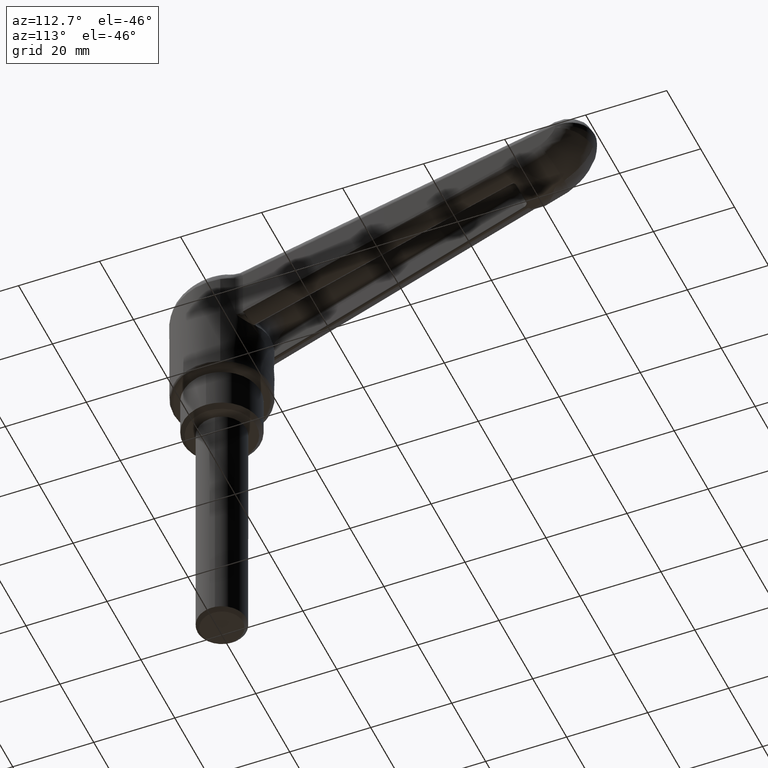
[diagram: clean part render]
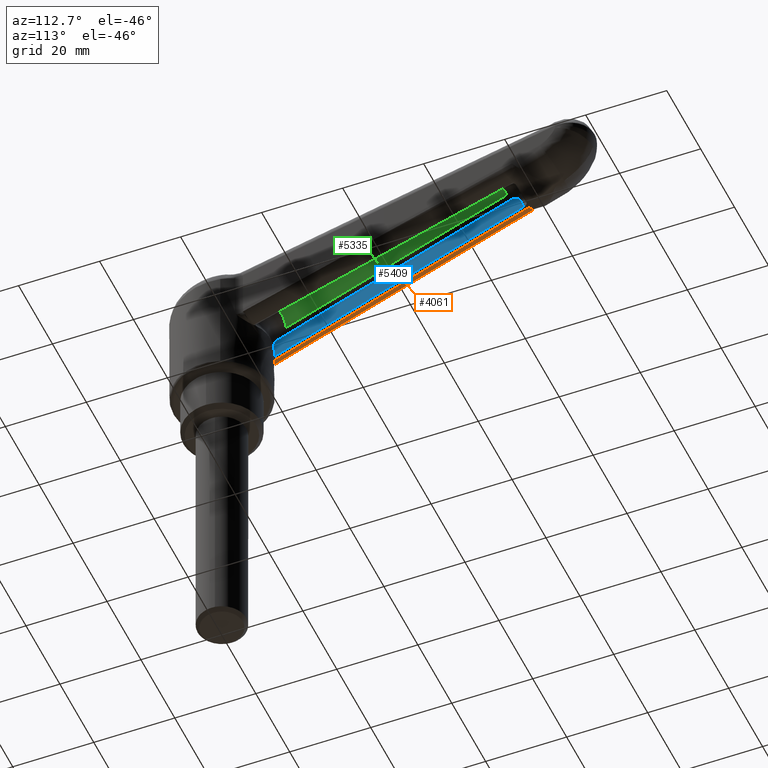
[diagram: same view with three faces highlighted in distinct colors, each labeled with its STEP entity id]
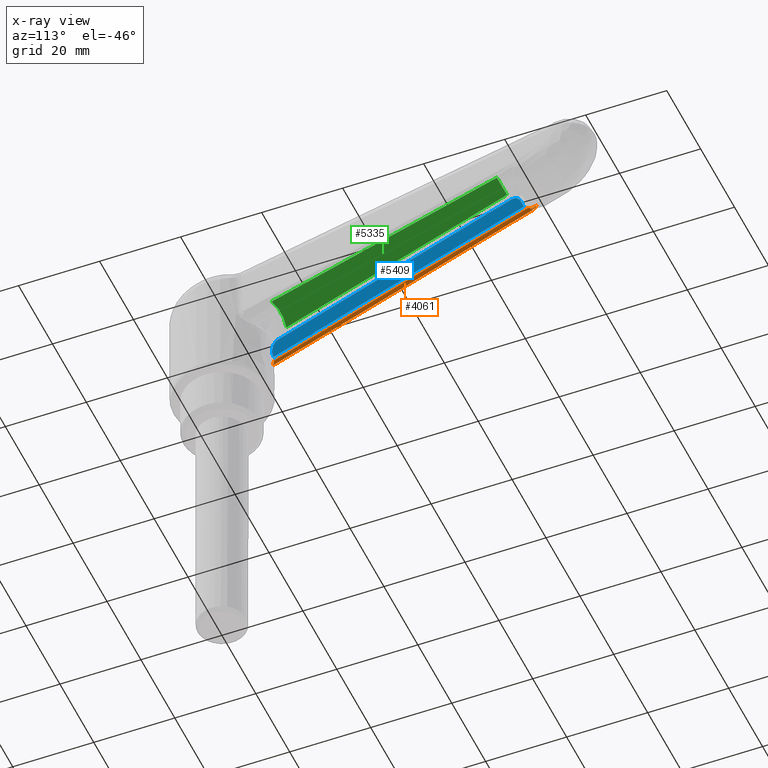
[diagram: x-ray of the same camera — body ghosted, the three highlighted faces saturated]
A machine part, auxiliary view with three faces highlighted in distinct colors.
The next image is the same camera in x-ray (body ghosted, the three faces saturated) — at least one of them is partly hidden behind the body in this view.
Their STEP definitions:

[orange] entity #4061 — the highlighted face is a freeform B-spline surface patch.
#2163=CARTESIAN_POINT('',(9.716791034725929,7.041588740296460,26.301989891236051));
#2164=VERTEX_POINT('',#2163);
#2184=CARTESIAN_POINT('',(10.329168252987580,6.108050687533111,26.311605404782050));
#2185=VERTEX_POINT('',#2184);
#2186=CARTESIAN_POINT('',(9.716791034725929,7.041588740296456,26.301989891236069));
#2187=CARTESIAN_POINT('',(9.770784893038117,6.967081827477795,26.291180572433390));
#2188=CARTESIAN_POINT('',(9.824196920928113,6.891574489327755,26.283282728903849));
#2189=CARTESIAN_POINT('',(9.929800158340195,6.738524534239940,26.273268621647212));
#2190=CARTESIAN_POINT('',(9.982103511388944,6.660810171807989,26.271155765757879));
#2191=CARTESIAN_POINT('',(10.136323499546499,6.425735486332939,26.273611884277759));
#2192=CARTESIAN_POINT('',(10.234833250040550,6.267578197606781,26.286849622559600));
#2193=CARTESIAN_POINT('',(10.329168252987570,6.108050687533107,26.311605404782039));
#2194=B_SPLINE_CURVE_WITH_KNOTS('',3,(#2186,#2187,#2188,#2189,#2190,#2191,#2192,#2193),.UNSPECIFIED.,.F.,.U.,(4,2,2,4),(0.0,0.250000000000000,0.499999999999999,1.0),.UNSPECIFIED.);
#2195=EDGE_CURVE('',#2164,#2185,#2194,.T.);
#3541=CARTESIAN_POINT('',(73.630679566776706,4.405316649427185,49.348382460704698));
#3542=VERTEX_POINT('',#3541);
#3554=CARTESIAN_POINT('',(74.181736060083608,5.228229268677830,49.710417394662997));
#3555=VERTEX_POINT('',#3554);
#3556=CARTESIAN_POINT('',(74.181736060083693,5.228229268677830,49.710417394662997));
#3557=CARTESIAN_POINT('',(74.172791781631304,5.143192997914966,49.676857243483717));
#3558=CARTESIAN_POINT('',(74.154551468018099,5.060307369742296,49.645155053789033));
#3559=CARTESIAN_POINT('',(74.112443372831748,4.940039549313770,49.598878382270406));
#3560=CARTESIAN_POINT('',(74.095933403805546,4.900633109258525,49.583662709316457));
#3561=CARTESIAN_POINT('',(74.057614389306366,4.823415411541825,49.553339451430723));
#3562=CARTESIAN_POINT('',(74.035751763266347,4.785629035566350,49.538232447780580));
#3563=CARTESIAN_POINT('',(73.964021564225391,4.678362807897544,49.493909325846658));
#3564=CARTESIAN_POINT('',(73.907441788632184,4.613796565291059,49.465190535397433));
#3565=CARTESIAN_POINT('',(73.810416163400376,4.527396607381496,49.421443591678077));
#3566=CARTESIAN_POINT('',(73.776040107043130,4.500366335920665,49.406758036764813));
#3567=CARTESIAN_POINT('',(73.722793896882735,4.462819445964809,49.384850893924558));
#3568=CARTESIAN_POINT('',(73.704727334341769,4.450763761111984,49.377551961230672));
#3569=CARTESIAN_POINT('',(73.668046047178592,4.427450731219519,49.362951517265181));
#3570=CARTESIAN_POINT('',(73.649182310688090,4.416090742642426,49.355555340080407));
#3571=CARTESIAN_POINT('',(73.630679566776607,4.405316649427215,49.348382460704698));
#3572=B_SPLINE_CURVE_WITH_KNOTS('',3,(#3556,#3557,#3558,#3559,#3560,#3561,#3562,#3563,#3564,#3565,#3566,#3567,#3568,#3569,#3570,#3571),.UNSPECIFIED.,.F.,.U.,(4,2,2,2,2,2,2,4),(0.0,0.250000000000017,0.375000000000022,0.500000000000026,0.750000000000028,0.875000000000029,0.937500000000014,1.0),.UNSPECIFIED.);
#3573=EDGE_CURVE('',#3555,#3542,#3572,.T.);
#3623=CARTESIAN_POINT('',(74.283120362973904,6.010447863262060,50.172684105514499));
#3624=VERTEX_POINT('',#3623);
#3641=CARTESIAN_POINT('',(74.283120362973904,6.010447863262060,50.172684105514499));
#3642=CARTESIAN_POINT('',(74.262493348624616,5.892398567019151,50.075082088765711));
#3643=CARTESIAN_POINT('',(74.244996858883695,5.767975072892204,49.987849447720222));
#3644=CARTESIAN_POINT('',(74.212054591879280,5.507190464228525,49.833649664822232));
#3645=CARTESIAN_POINT('',(74.196733009729897,5.370810325107495,49.766687992681462));
#3646=CARTESIAN_POINT('',(74.181736060083622,5.228229268677801,49.710417394663047));
#3647=B_SPLINE_CURVE_WITH_KNOTS('',3,(#3641,#3642,#3643,#3644,#3645,#3646),.UNSPECIFIED.,.F.,.U.,(4,2,4),(0.0,0.500000000000000,1.0),.UNSPECIFIED.);
#3648=EDGE_CURVE('',#3624,#3555,#3647,.T.);
#3834=CARTESIAN_POINT('',(73.630679566776692,4.405316649427171,49.348382460704748));
#3835=CARTESIAN_POINT('',(73.452945627234996,4.410097493794985,49.283699359469587));
#3836=CARTESIAN_POINT('',(73.275211682526674,4.414878338162819,49.219016272431098));
#3837=CARTESIAN_POINT('',(73.097477732651598,4.419659182530650,49.154333199589601));
#3838=CARTESIAN_POINT('',(71.844938920874313,4.453351074979929,48.698494237725889));
#3839=CARTESIAN_POINT('',(70.592399852496456,4.487042967429637,48.242655980939887));
#3840=CARTESIAN_POINT('',(69.339860527484007,4.520734859879781,47.786818429328903));
#3841=CARTESIAN_POINT('',(64.329703227422115,4.655502429680681,45.963468222880550));
#3842=CARTESIAN_POINT('',(59.319541821213583,4.790269999488588,44.140129299162858));
#3843=CARTESIAN_POINT('',(54.309376306491593,4.925037569301620,42.316801664916603));
#3844=CARTESIAN_POINT('',(39.649342155131237,5.319375275341361,36.981639521345691));
#3845=CARTESIAN_POINT('',(24.989272828630661,5.713712981435667,31.646574031531902));
#3846=CARTESIAN_POINT('',(10.329168252987580,6.108050687533111,26.311605404782050));
#3847=B_SPLINE_CURVE_WITH_KNOTS('',3,(#3834,#3835,#3836,#3837,#3838,#3839,#3840,#3841,#3842,#3843,#3844,#3845,#3846),.UNSPECIFIED.,.F.,.U.,(4,3,3,3,4),(0.000432404175571,0.001000000000000,0.005000000000001,0.021000000000082,0.067816925656176),.UNSPECIFIED.);
#3848=EDGE_CURVE('',#3542,#2185,#3847,.T.);
#3956=CARTESIAN_POINT('',(8.932418016149800,8.926712615641151,28.591295077871301));
#3957=VERTEX_POINT('',#3956);
#3975=CARTESIAN_POINT('',(8.932418016149805,8.926712615641151,28.591295077871301));
#3976=CARTESIAN_POINT('',(9.532904592826199,8.703600380700614,26.925581829964585));
#3977=CARTESIAN_POINT('',(9.716791034725940,7.041588740296456,26.301989891236069));
#3985=(BOUNDED_CURVE()B_SPLINE_CURVE(2,(#3975,#3976,#3977),.UNSPECIFIED.,.F.,.U.)CURVE()GEOMETRIC_REPRESENTATION_ITEM()QUASI_UNIFORM_CURVE()RATIONAL_B_SPLINE_CURVE((1.0,0.859427275457004,1.0))REPRESENTATION_ITEM(''));
#3986=EDGE_CURVE('',#3957,#2164,#3985,.T.);
#3991=CARTESIAN_POINT('',(8.932418016149784,8.926712615641138,28.591295077871269));
#3992=CARTESIAN_POINT('',(30.957901181393929,8.355776424844621,36.607968412141702));
#3993=CARTESIAN_POINT('',(52.983384346658227,7.784840231081216,44.624641746145493));
#3994=CARTESIAN_POINT('',(75.008867511740590,7.213904034429143,52.641315080443292));
#3995=CARTESIAN_POINT('',(9.822594154824422,8.595965525689984,26.122000601102517));
#3996=CARTESIAN_POINT('',(31.848095142652195,8.025067474109241,34.138627684449446));
#3997=CARTESIAN_POINT('',(53.873596130506805,7.454169421999286,42.155254767685371));
#3998=CARTESIAN_POINT('',(75.899097118181885,6.883271369300392,50.171881851372000));
#3999=CARTESIAN_POINT('',(9.762055290571160,5.951145694035961,26.099966255593579));
#4000=CARTESIAN_POINT('',(31.787555262314850,5.380203258272440,34.116592969207630));
#4001=CARTESIAN_POINT('',(53.813055234038572,4.809260821634029,42.133219682814413));
#4002=CARTESIAN_POINT('',(75.838555205716162,4.238318382981810,50.149846396404413));
#4010=(BOUNDED_SURFACE()B_SPLINE_SURFACE(3,2,((#3991,#3995,#3999),(#3992,#3996,#4000),(#3993,#3997,#4001),(#3994,#3998,#4002)),.UNSPECIFIED.,.F.,.F.,.U.)B_SPLINE_SURFACE_WITH_KNOTS((4,4),(3,3),(0.0,70.338222093695677),(0.0,4.535555983475211),.UNSPECIFIED.)GEOMETRIC_REPRESENTATION_ITEM()RATIONAL_B_SPLINE_SURFACE(((1.0,0.750018225467966,1.0),(1.0,0.750012719247398,1.0),(1.0,0.750007212966194,1.0),(1.0,0.750001706624351,1.0)))REPRESENTATION_ITEM('')SURFACE());
#4011=ORIENTED_EDGE('',*,*,#3648,.T.);
#4012=ORIENTED_EDGE('',*,*,#3573,.T.);
#4013=ORIENTED_EDGE('',*,*,#3848,.T.);
#4014=ORIENTED_EDGE('',*,*,#2195,.F.);
#4015=ORIENTED_EDGE('',*,*,#3986,.F.);
#4016=CARTESIAN_POINT('',(74.614773379561399,7.224119592619759,52.497875597327003));
#4017=VERTEX_POINT('',#4016);
#4018=CARTESIAN_POINT('',(74.614773379561399,7.224119592619759,52.497875597327003));
#4019=CARTESIAN_POINT('',(72.735946891305261,7.272821818187284,51.814034153531843));
#4020=CARTESIAN_POINT('',(70.857120403048626,7.321524043733531,51.130192709736519));
#4021=CARTESIAN_POINT('',(68.978293914791507,7.370226269258380,50.446351265940997));
#4022=CARTESIAN_POINT('',(61.462987961763012,7.565035171357776,47.710985490758972));
#4023=CARTESIAN_POINT('',(53.947682008726723,7.759844073115976,44.975619715574076));
#4024=CARTESIAN_POINT('',(46.432376055682603,7.954652974532441,42.240253940386353));
#4025=CARTESIAN_POINT('',(33.932390042526620,8.278672855846486,37.690600986222520));
#4026=CARTESIAN_POINT('',(21.432404029349009,8.602692736216373,33.140948032050922));
#4027=CARTESIAN_POINT('',(8.932418016149791,8.926712615641151,28.591295077871351));
#4028=B_SPLINE_CURVE_WITH_KNOTS('',3,(#4018,#4019,#4020,#4021,#4022,#4023,#4024,#4025,#4026,#4027),.UNSPECIFIED.,.F.,.U.,(4,3,3,4),(0.0,0.006000000000000,0.030000000000000,0.069918489837959),.UNSPECIFIED.);
#4029=EDGE_CURVE('',#4017,#3957,#4028,.T.);
#4030=ORIENTED_EDGE('',*,*,#4029,.F.);
#4031=CARTESIAN_POINT('',(74.283120362973904,6.010447863262026,50.172684105514563));
#4032=CARTESIAN_POINT('',(74.290683878466638,6.053734189920232,50.208472821872697));
#4033=CARTESIAN_POINT('',(74.298247808476944,6.096309533464061,50.245625025224413));
#4034=CARTESIAN_POINT('',(74.313204990782182,6.179005977602454,50.321706979817257));
#4035=CARTESIAN_POINT('',(74.320613726763114,6.219218770788774,50.360704231559012));
#4036=CARTESIAN_POINT('',(74.342659911589450,6.336545832016105,50.480480837449271));
#4037=CARTESIAN_POINT('',(74.357117408856737,6.410357604429090,50.564037690975837));
#4038=CARTESIAN_POINT('',(74.385704156528433,6.549439928543022,50.738311738582830));
#4039=CARTESIAN_POINT('',(74.399833021831682,6.614709585273250,50.829029741970842));
#4040=CARTESIAN_POINT('',(74.420894948547797,6.706204504543752,50.970460714141737));
#4041=CARTESIAN_POINT('',(74.427911162444076,6.735701889968299,51.018621571474242));
#4042=CARTESIAN_POINT('',(74.441825054895347,6.792149430767416,51.116077105024353));
#4043=CARTESIAN_POINT('',(74.448717161656731,6.819083226045940,51.165326150638450));
#4044=CARTESIAN_POINT('',(74.482914424861889,6.947471632714002,51.414102562522693));
#4045=CARTESIAN_POINT('',(74.509433086843728,7.030264871611466,51.621151351098142));
#4046=CARTESIAN_POINT('',(74.542436492465839,7.109633304191633,51.889572110425590));
#4047=CARTESIAN_POINT('',(74.549029856636835,7.124289834079924,51.943741133919588));
#4048=CARTESIAN_POINT('',(74.562225132652472,7.151144320504410,52.053055564980610));
#4049=CARTESIAN_POINT('',(74.568832393937015,7.163347056171242,52.108247219264001));
#4050=CARTESIAN_POINT('',(74.581993823068458,7.185126183887143,52.218894286444048));
#4051=CARTESIAN_POINT('',(74.591840193225181,7.199524948533136,52.302201600586180));
#4052=CARTESIAN_POINT('',(74.601676552656627,7.211036786033592,52.385986029334148));
#4053=CARTESIAN_POINT('',(74.608234898035505,7.218069523528589,52.441948032934832));
#4054=CARTESIAN_POINT('',(74.611538157860309,7.221280942846003,52.470153746104621));
#4055=CARTESIAN_POINT('',(74.614773379561399,7.224119592619759,52.497875597327003));
#4056=B_SPLINE_CURVE_WITH_KNOTS('',3,(#4031,#4032,#4033,#4034,#4035,#4036,#4037,#4038,#4039,#4040,#4041,#4042,#4043,#4044,#4045,#4046,#4047,#4048,#4049,#4050,#4051,#4052,#4053,#4054,#4055),.UNSPECIFIED.,.F.,.U.,(4,2,2,2,2,2,2,2,2,2,1,2,4),(0.0,0.062500000000000,0.125000000000000,0.250000000000000,0.374999999999999,0.437499999999999,0.499999999999999,0.749999999999984,0.812499999999986,0.874999999999988,0.937499999999990,0.968749999999995,1.0),.UNSPECIFIED.);
#4057=EDGE_CURVE('',#3624,#4017,#4056,.T.);
#4058=ORIENTED_EDGE('',*,*,#4057,.F.);
#4059=EDGE_LOOP('',(#4011,#4012,#4013,#4014,#4015,#4030,#4058));
#4060=FACE_OUTER_BOUND('',#4059,.T.);
#4061=ADVANCED_FACE('',(#4060),#4010,.T.);

[blue] entity #5409 — the highlighted face is a freeform B-spline surface patch.
#2197=CARTESIAN_POINT('',(10.630725661781740,5.566657157031950,26.952557038581201));
#2198=VERTEX_POINT('',#2197);
#2222=CARTESIAN_POINT('',(10.628276401230419,5.571332043510680,26.415244969108102));
#2223=VERTEX_POINT('',#2222);
#2224=CARTESIAN_POINT('',(10.628276401230419,5.571332043510680,26.415244969108102));
#2225=CARTESIAN_POINT('',(10.629501545512944,5.568994869570138,26.683868251889290));
#2226=CARTESIAN_POINT('',(10.630725661781740,5.566657157031950,26.952557038581201));
#2234=(BOUNDED_CURVE()B_SPLINE_CURVE(2,(#2224,#2225,#2226),.UNSPECIFIED.,.F.,.U.)CURVE()GEOMETRIC_REPRESENTATION_ITEM()QUASI_UNIFORM_CURVE()RATIONAL_B_SPLINE_CURVE((1.0,0.999999977639520,1.0))REPRESENTATION_ITEM(''));
#2235=EDGE_CURVE('',#2223,#2198,#2234,.T.);
#3058=CARTESIAN_POINT('',(11.050157803588380,5.514330684559640,31.889686136176412));
#3059=VERTEX_POINT('',#3058);
#3086=CARTESIAN_POINT('',(69.494422689951293,3.951746085514970,53.161659791571203));
#3087=VERTEX_POINT('',#3086);
#3088=CARTESIAN_POINT('',(69.494422689951293,3.951746085514970,53.161659791571203));
#3089=CARTESIAN_POINT('',(11.050157803588380,5.514330684559640,31.889686136176412));
#3090=QUASI_UNIFORM_CURVE('',1,(#3088,#3089),.UNSPECIFIED.,.F.,.U.);
#3091=EDGE_CURVE('',#3087,#3059,#3090,.T.);
#3154=CARTESIAN_POINT('',(72.057848233944185,3.901498239541365,51.966314870469112));
#3155=VERTEX_POINT('',#3154);
#3187=CARTESIAN_POINT('',(72.057848233944128,3.901498239541380,51.966314870469112));
#3188=CARTESIAN_POINT('',(71.373807922498699,3.901498239541380,53.845700103016618));
#3189=CARTESIAN_POINT('',(69.494422689951278,3.951746085514983,53.161659791571253));
#3197=(BOUNDED_CURVE()B_SPLINE_CURVE(2,(#3187,#3188,#3189),.UNSPECIFIED.,.F.,.U.)CURVE()GEOMETRIC_REPRESENTATION_ITEM()QUASI_UNIFORM_CURVE()RATIONAL_B_SPLINE_CURVE((1.0,0.707106781186515,1.0))REPRESENTATION_ITEM(''));
#3198=EDGE_CURVE('',#3155,#3087,#3197,.T.);
#3217=CARTESIAN_POINT('',(72.912320775326208,3.901498239541365,49.618670953844401));
#3218=VERTEX_POINT('',#3217);
#3240=CARTESIAN_POINT('',(72.912320775326208,3.901498239541365,49.618670953844401));
#3241=CARTESIAN_POINT('',(72.057848233944185,3.901498239541365,51.966314870469112));
#3242=QUASI_UNIFORM_CURVE('',1,(#3240,#3241),.UNSPECIFIED.,.F.,.U.);
#3243=EDGE_CURVE('',#3218,#3155,#3242,.T.);
#3853=CARTESIAN_POINT('',(10.630725661781740,5.566657157031950,26.952557038581190));
#3854=CARTESIAN_POINT('',(12.138126107745419,5.526355456758203,27.501131333064940));
#3855=CARTESIAN_POINT('',(13.645526243128140,5.486053756483454,28.049706480979559));
#3856=CARTESIAN_POINT('',(15.152926068005950,5.445752056207740,28.598282482111600));
#3857=CARTESIAN_POINT('',(21.415664350471189,5.278312073132506,30.877430898099931));
#3858=CARTESIAN_POINT('',(27.678397273310988,5.110872090040060,33.156594041541197));
#3859=CARTESIAN_POINT('',(33.941124841600463,4.943432106933179,35.435771898167197));
#3860=CARTESIAN_POINT('',(46.931546510794668,4.596120817862493,40.163341650135287));
#3861=CARTESIAN_POINT('',(59.921945143058437,4.248809528723623,44.890974703481021));
#3862=CARTESIAN_POINT('',(72.912320775326194,3.901498239541361,49.618670953844493));
#3863=B_SPLINE_CURVE_WITH_KNOTS('',3,(#3853,#3854,#3855,#3856,#3857,#3858,#3859,#3860,#3861,#3862),.UNSPECIFIED.,.F.,.U.,(4,3,3,4),(0.000186131826386,0.005000000000001,0.025000000000108,0.066484869101438),.UNSPECIFIED.);
#3864=EDGE_CURVE('',#2198,#3218,#3863,.T.);
#4595=CARTESIAN_POINT('',(10.286256245507779,5.571332043510680,27.354937585381752));
#4596=VERTEX_POINT('',#4595);
#4610=CARTESIAN_POINT('',(11.050157803588389,5.514330684559630,31.889686136176401));
#4611=CARTESIAN_POINT('',(10.991719119508200,5.516402375422817,31.809151430714898));
#4612=CARTESIAN_POINT('',(10.935239116198940,5.518442446111495,31.726915101855180));
#4613=CARTESIAN_POINT('',(10.826314485521721,5.522457441961625,31.558936671156118));
#4614=CARTESIAN_POINT('',(10.773725665973300,5.524438072111651,31.472926814254130));
#4615=CARTESIAN_POINT('',(10.623864922404140,5.530215604480920,31.212303693180811));
#4616=CARTESIAN_POINT('',(10.534121928244341,5.533860466870489,31.034698547190882));
#4617=CARTESIAN_POINT('',(10.374988206594431,5.540736052991452,30.671766378599710));
#4618=CARTESIAN_POINT('',(10.305594377743381,5.543966839830978,30.486440532689318));
#4619=CARTESIAN_POINT('',(10.188103431112181,5.549995056798985,30.107708631534400));
#4620=CARTESIAN_POINT('',(10.139995803501360,5.552792700787044,29.914306563836611));
#4621=CARTESIAN_POINT('',(10.094455884738300,5.555992776832049,29.667016619477330));
#4622=CARTESIAN_POINT('',(10.086084991262959,5.556617787891633,29.617279604316671));
#4623=CARTESIAN_POINT('',(10.070961081738661,5.557827650827305,29.518034029859120));
#4624=CARTESIAN_POINT('',(10.050645609829200,5.559586073879352,29.369213302338590));
#4625=CARTESIAN_POINT('',(10.037420190514890,5.561175885248975,29.220535052807961));
#4626=CARTESIAN_POINT('',(10.020460099519370,5.564129804313333,28.923369274848859));
#4627=CARTESIAN_POINT('',(10.021773950858710,5.565798948115948,28.725512372759692));
#4628=CARTESIAN_POINT('',(10.050642021252189,5.568513201909240,28.330325881291060));
#4629=CARTESIAN_POINT('',(10.078188214682831,5.569558502760819,28.132996130632851));
#4630=CARTESIAN_POINT('',(10.140812752185971,5.570619784510264,27.837429643756920));
#4631=CARTESIAN_POINT('',(10.165189081919410,5.570887034069736,27.739354981002212));
#4632=CARTESIAN_POINT('',(10.220624394691139,5.571242722957877,27.545654313002881));
#4633=CARTESIAN_POINT('',(10.251730731732760,5.571332043510680,27.449795650979929));
#4634=CARTESIAN_POINT('',(10.286256245507779,5.571332043510680,27.354937585381752));
#4635=B_SPLINE_CURVE_WITH_KNOTS('',3,(#4610,#4611,#4612,#4613,#4614,#4615,#4616,#4617,#4618,#4619,#4620,#4621,#4622,#4623,#4624,#4625,#4626,#4627,#4628,#4629,#4630,#4631,#4632,#4633,#4634),.UNSPECIFIED.,.F.,.U.,(4,2,2,2,2,2,2,1,2,2,2,2,4),(0.0,0.062500000000001,0.125000000000003,0.250000000000006,0.375000000000010,0.500000000000013,0.531250000000013,0.562500000000013,0.625000000000010,0.750000000000007,0.875000000000005,0.937500000000002,1.0),.UNSPECIFIED.);
#4636=EDGE_CURVE('',#3059,#4596,#4635,.T.);
#5350=CARTESIAN_POINT('',(10.286256245507779,5.571332043510680,27.354937585381752));
#5351=CARTESIAN_POINT('',(10.628276401230419,5.571332043510680,26.415244969108102));
#5352=QUASI_UNIFORM_CURVE('',1,(#5350,#5351),.UNSPECIFIED.,.F.,.U.);
#5353=EDGE_CURVE('',#4596,#2223,#5352,.T.);
#5395=CARTESIAN_POINT('',(76.058748845568047,4.038130995529383,25.073252072554158));
#5396=CARTESIAN_POINT('',(6.883972031772737,5.671262039894680,25.073252072554158));
#5397=CARTESIAN_POINT('',(76.052757306752412,3.784346486457839,54.623964284459163));
#5398=CARTESIAN_POINT('',(6.877980492957088,5.417477530823136,54.623964284459163));
#5399=B_SPLINE_SURFACE_WITH_KNOTS('',1,1,((#5395,#5397),(#5396,#5398)),.UNSPECIFIED.,.F.,.F.,.U.,(2,2),(2,2),(0.0,69.194052231723390),(0.0,29.551802562727261),.UNSPECIFIED.);
#5400=ORIENTED_EDGE('',*,*,#3198,.T.);
#5401=ORIENTED_EDGE('',*,*,#3091,.T.);
#5402=ORIENTED_EDGE('',*,*,#4636,.T.);
#5403=ORIENTED_EDGE('',*,*,#5353,.T.);
#5404=ORIENTED_EDGE('',*,*,#2235,.T.);
#5405=ORIENTED_EDGE('',*,*,#3864,.T.);
#5406=ORIENTED_EDGE('',*,*,#3243,.T.);
#5407=EDGE_LOOP('',(#5400,#5401,#5402,#5403,#5404,#5405,#5406));
#5408=FACE_OUTER_BOUND('',#5407,.T.);
#5409=ADVANCED_FACE('',(#5408),#5399,.F.);

[green] entity #5335 — the highlighted face is a freeform B-spline surface patch.
#2569=CARTESIAN_POINT('',(69.128801216842504,-2.952061541936060,54.092762230474293));
#2570=VERTEX_POINT('',#2569);
#2618=CARTESIAN_POINT('',(14.073639295410260,-4.424033997806760,34.054321225824602));
#2619=VERTEX_POINT('',#2618);
#2646=CARTESIAN_POINT('',(69.128801216842504,-2.952061541936060,54.092762230474293));
#2647=CARTESIAN_POINT('',(14.073639295410260,-4.424033997806760,34.054321225824602));
#2648=QUASI_UNIFORM_CURVE('',1,(#2646,#2647),.UNSPECIFIED.,.F.,.U.);
#2649=EDGE_CURVE('',#2570,#2619,#2648,.T.);
#3060=CARTESIAN_POINT('',(14.073639295410221,4.424033997806915,34.054321225824602));
#3061=VERTEX_POINT('',#3060);
#3093=CARTESIAN_POINT('',(69.128801216842504,2.952061541936170,54.092762230474293));
#3094=VERTEX_POINT('',#3093);
#3108=CARTESIAN_POINT('',(14.073639295410221,4.424033997806915,34.054321225824602));
#3109=CARTESIAN_POINT('',(69.128801216842504,2.952061541936170,54.092762230474293));
#3110=QUASI_UNIFORM_CURVE('',1,(#3108,#3109),.UNSPECIFIED.,.F.,.U.);
#3111=EDGE_CURVE('',#3061,#3094,#3110,.T.);
#3890=CARTESIAN_POINT('',(69.128801216842504,2.952061541936170,54.092762230474293));
#3891=CARTESIAN_POINT('',(69.128801216842504,-2.952061541936060,54.092762230474293));
#3892=QUASI_UNIFORM_CURVE('',1,(#3890,#3891),.UNSPECIFIED.,.F.,.U.);
#3893=EDGE_CURVE('',#3094,#2570,#3892,.T.);
#4552=CARTESIAN_POINT('',(14.073639295410279,-4.424033997806760,34.054321225824587));
#4553=CARTESIAN_POINT('',(15.241203007922699,8.500145E-014,34.479279681232249));
#4554=CARTESIAN_POINT('',(14.073639295410240,4.424033997806920,34.054321225824580));
#4562=(BOUNDED_CURVE()B_SPLINE_CURVE(2,(#4552,#4553,#4554),.UNSPECIFIED.,.F.,.U.)CURVE()GEOMETRIC_REPRESENTATION_ITEM()QUASI_UNIFORM_CURVE()RATIONAL_B_SPLINE_CURVE((1.0,0.962750937698993,1.0))REPRESENTATION_ITEM(''));
#4563=EDGE_CURVE('',#2619,#3061,#4562,.T.);
#5324=CARTESIAN_POINT('',(71.878804897655058,-4.865995143157053,55.093681755498523));
#5325=CARTESIAN_POINT('',(71.878804897655058,4.865995222265100,55.093681755498523));
#5326=CARTESIAN_POINT('',(11.323632661208670,-4.865995143157053,33.053400625854550));
#5327=CARTESIAN_POINT('',(11.323632661208670,4.865995222265100,33.053400625854550));
#5328=B_SPLINE_SURFACE_WITH_KNOTS('',1,1,((#5324,#5326),(#5325,#5327)),.UNSPECIFIED.,.F.,.F.,.U.,(2,2),(2,2),(0.0,9.731990365422153),(0.0,64.441468611907254),.UNSPECIFIED.);
#5329=ORIENTED_EDGE('',*,*,#3893,.T.);
#5330=ORIENTED_EDGE('',*,*,#2649,.T.);
#5331=ORIENTED_EDGE('',*,*,#4563,.T.);
#5332=ORIENTED_EDGE('',*,*,#3111,.T.);
#5333=EDGE_LOOP('',(#5329,#5330,#5331,#5332));
#5334=FACE_OUTER_BOUND('',#5333,.T.);
#5335=ADVANCED_FACE('',(#5334),#5328,.F.);